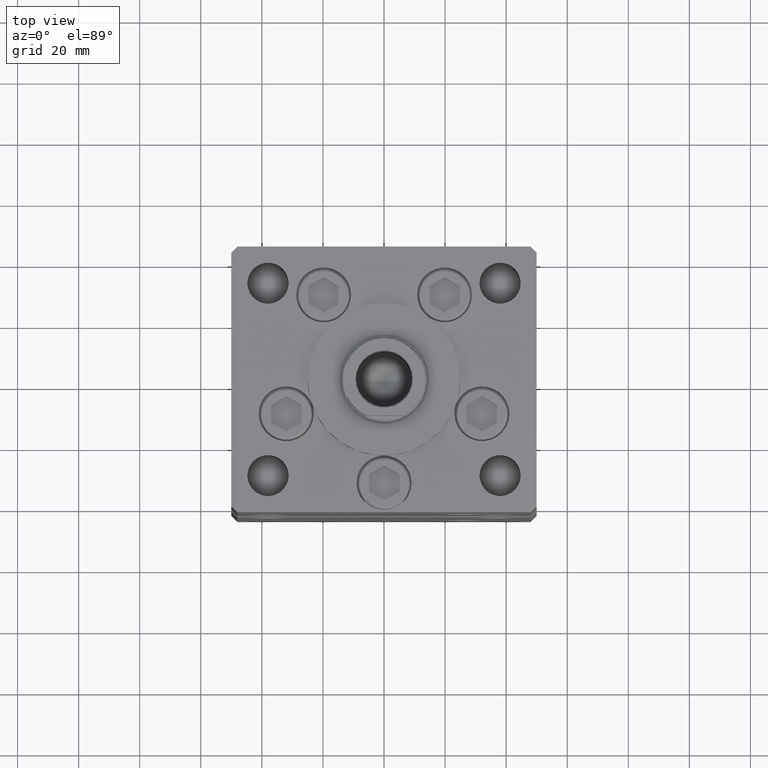
[diagram: clean part render]
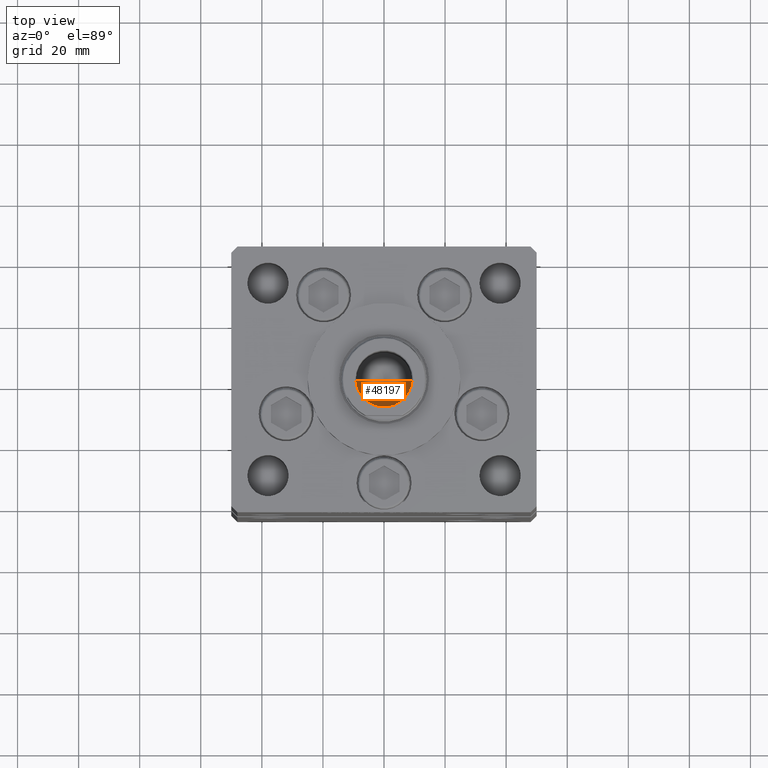
[diagram: same view with one face highlighted and labeled with its STEP entity id]
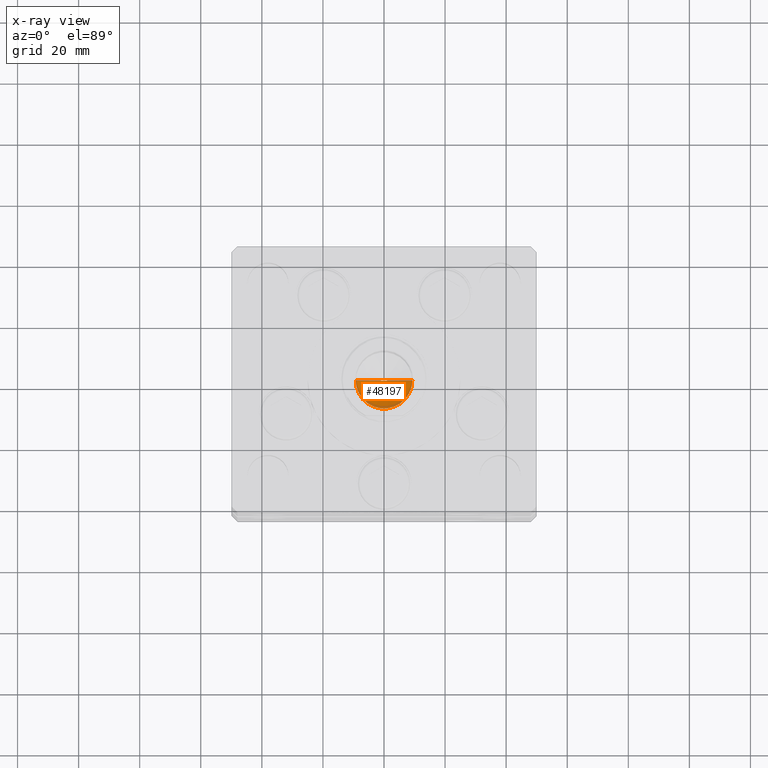
[diagram: x-ray of the same camera — body ghosted, the highlighted face saturated]
A machine part, top view. The second image highlights one B-rep face of the part: STEP entity #48197.
The next image is the same camera in x-ray: the body ghosted, the highlighted face saturated — about 9% of this face is hidden behind the body in this view.
In plain terms, the highlighted conical surface has half-angle 59 deg.
Its self-contained STEP definition (entity closure, byte-faithful):
#479 = DIRECTION ( 'NONE',  ( -0.000000000000000000, -0.000000000000000000, 1.000000000000000000 ) ) ;
#1267 = CARTESIAN_POINT ( 'NONE',  ( 0.000000000000000000, 0.000000000000000000, 130.2500000000000000 ) ) ;
#2981 = VECTOR ( 'NONE', #37692, 1000.000000000000000 ) ;
#3617 = VERTEX_POINT ( 'NONE', #45139 ) ;
#5034 = DIRECTION ( 'NONE',  ( 1.000000000000000000, 0.000000000000000000, 0.000000000000000000 ) ) ;
#5988 = VERTEX_POINT ( 'NONE', #40208 ) ;
#8946 = CARTESIAN_POINT ( 'NONE',  ( 9.249999999999994671, 0.000000000000000000, 130.2500000000000000 ) ) ;
#11560 = ORIENTED_EDGE ( 'NONE', *, *, #38205, .T. ) ;
#13060 = AXIS2_PLACEMENT_3D ( 'NONE', #1267, #479, #5034 ) ;
#13420 = ORIENTED_EDGE ( 'NONE', *, *, #49188, .T. ) ;
#13455 = ORIENTED_EDGE ( 'NONE', *, *, #16869, .F. ) ;
#15571 = LINE ( 'NONE', #28229, #32638 ) ;
#16869 = EDGE_CURVE ( 'NONE', #5988, #3617, #45754, .T. ) ;
#19126 = CIRCLE ( 'NONE', #31998, 9.249999999999994671 ) ;
#19620 = DIRECTION ( 'NONE',  ( -0.8571673007021117785, 1.049727191138617956E-16, 0.5150380749100550437 ) ) ;
#21980 = FACE_OUTER_BOUND ( 'NONE', #51517, .T. ) ;
#23360 = CONICAL_SURFACE ( 'NONE', #13060, 9.249999999999994671, 1.029744258676653423 ) ;
#23572 = DIRECTION ( 'NONE',  ( 1.000000000000000000, 0.000000000000000000, 0.000000000000000000 ) ) ;
#28229 = CARTESIAN_POINT ( 'NONE',  ( -9.249999999999994671, 1.132798289211300909E-15, 130.2500000000000000 ) ) ;
#31998 = AXIS2_PLACEMENT_3D ( 'NONE', #49058, #32429, #23572 ) ;
#32429 = DIRECTION ( 'NONE',  ( -0.000000000000000000, -0.000000000000000000, 1.000000000000000000 ) ) ;
#32638 = VECTOR ( 'NONE', #19620, 1000.000000000000000 ) ;
#35223 = VERTEX_POINT ( 'NONE', #49516 ) ;
#37692 = DIRECTION ( 'NONE',  ( 0.8571673007021117785, 0.000000000000000000, 0.5150380749100550437 ) ) ;
#38205 = EDGE_CURVE ( 'NONE', #5988, #35223, #15571, .T. ) ;
#40208 = CARTESIAN_POINT ( 'NONE',  ( -1.046994375366439223E-14, 0.000000000000000000, 124.6920392739950643 ) ) ;
#45139 = CARTESIAN_POINT ( 'NONE',  ( 9.249999999999994671, 0.000000000000000000, 130.2500000000000000 ) ) ;
#45754 = LINE ( 'NONE', #8946, #2981 ) ;
#48197 = ADVANCED_FACE ( 'NONE', ( #21980 ), #23360, .F. ) ;
#49058 = CARTESIAN_POINT ( 'NONE',  ( 0.000000000000000000, 0.000000000000000000, 130.2500000000000000 ) ) ;
#49188 = EDGE_CURVE ( 'NONE', #35223, #3617, #19126, .T. ) ;
#49516 = CARTESIAN_POINT ( 'NONE',  ( -9.249999999999994671, 1.132798289211300909E-15, 130.2500000000000000 ) ) ;
#51517 = EDGE_LOOP ( 'NONE', ( #13455, #11560, #13420 ) ) ;